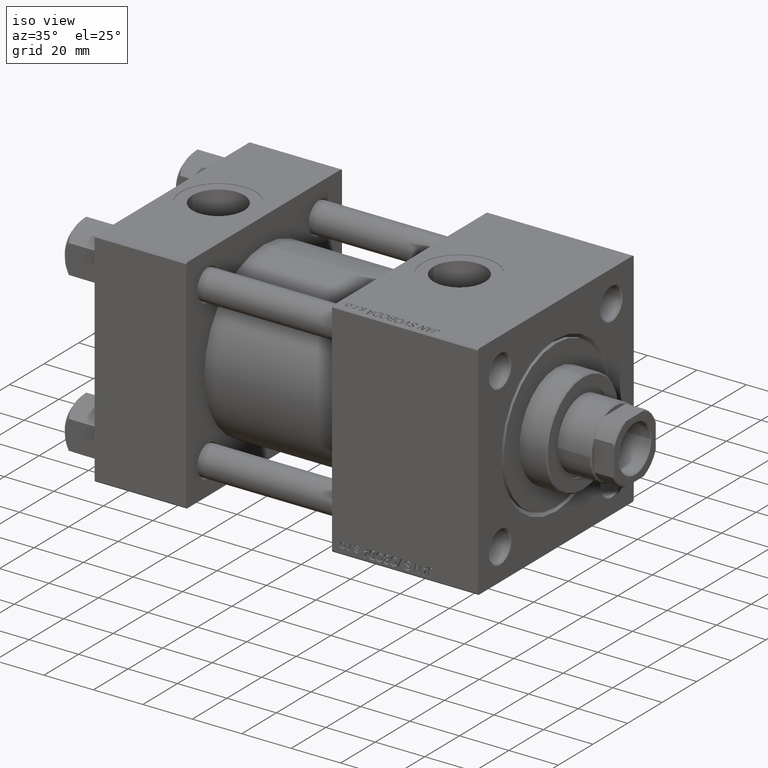
[diagram: clean part render]
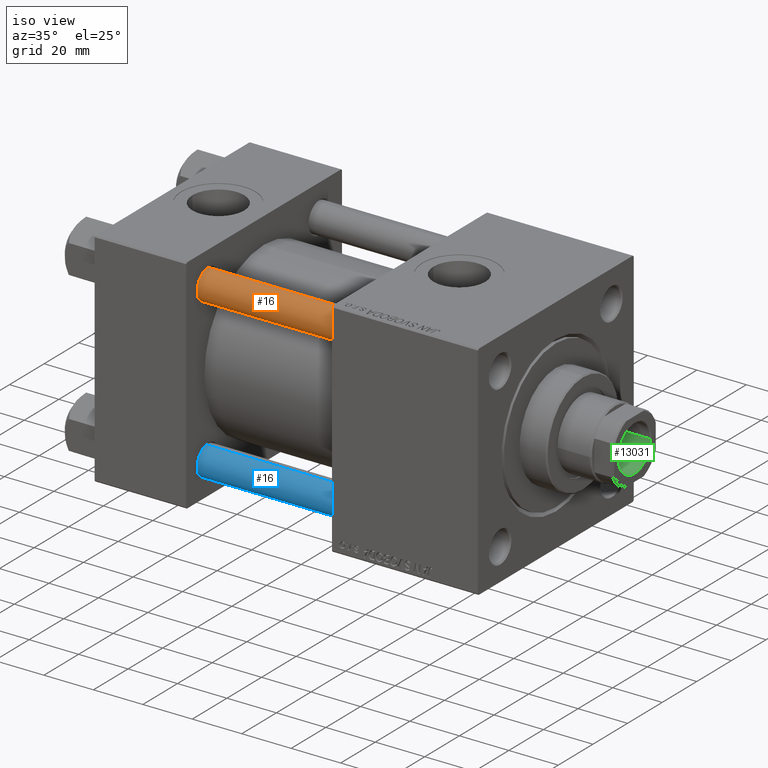
[diagram: same view with three faces highlighted in distinct colors, each labeled with its STEP entity id]
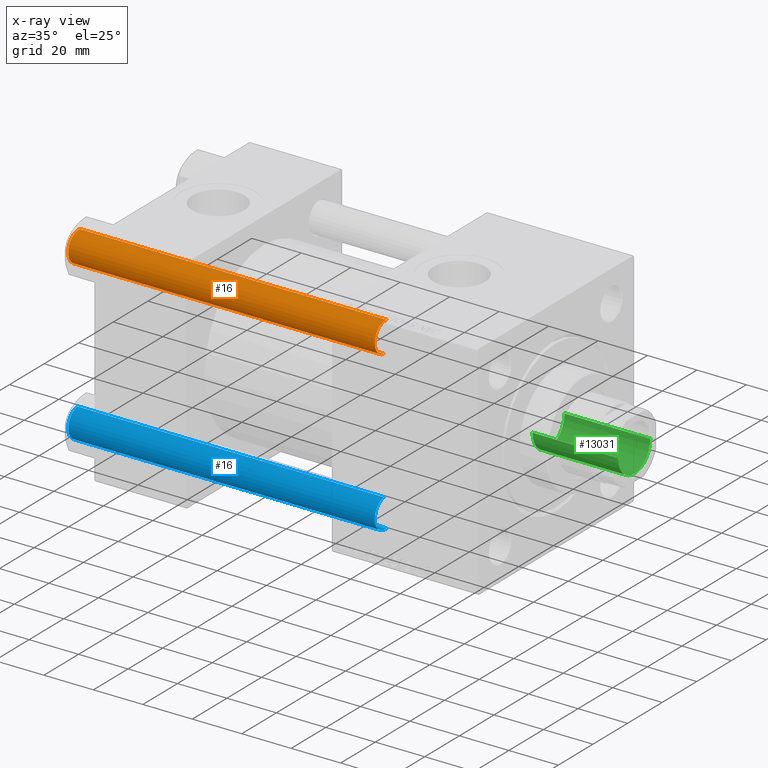
[diagram: x-ray of the same camera — body ghosted, the three highlighted faces saturated]
A machine part, iso view with three faces highlighted in distinct colors.
The next image is the same camera in x-ray (body ghosted, the three faces saturated) — at least one of them is partly hidden behind the body in this view.
Their STEP definitions:

[orange] entity #16 — the highlighted cylindrical surface (edge-blend (fillet) strip) has radius 6 mm, axis along (1, 0, -0).
#16 = ADVANCED_FACE ( 'NONE', ( #22363 ), #37685, .T. ) ;
#798 = CARTESIAN_POINT ( 'NONE',  ( -6.000000000000000888, 0.000000000000000000, 124.5000000000000000 ) ) ;
#1238 = ORIENTED_EDGE ( 'NONE', *, *, #6695, .T. ) ;
#6092 = DIRECTION ( 'NONE',  ( -0.000000000000000000, -0.000000000000000000, 1.000000000000000000 ) ) ;
#6301 = AXIS2_PLACEMENT_3D ( 'NONE', #28193, #24760, #12588 ) ;
#6695 = EDGE_CURVE ( 'NONE', #16794, #18965, #20086, .T. ) ;
#6934 = EDGE_LOOP ( 'NONE', ( #14690, #1238, #38346, #25679 ) ) ;
#6967 = LINE ( 'NONE', #15146, #19276 ) ;
#7432 = CARTESIAN_POINT ( 'NONE',  ( 6.000000000000000888, 7.347880794884120722E-16, 124.5000000000000000 ) ) ;
#8188 = DIRECTION ( 'NONE',  ( -0.000000000000000000, -0.000000000000000000, -1.000000000000000000 ) ) ;
#9409 = CARTESIAN_POINT ( 'NONE',  ( 0.000000000000000000, 0.000000000000000000, 125.0000000000000000 ) ) ;
#9889 = VERTEX_POINT ( 'NONE', #798 ) ;
#10214 = VERTEX_POINT ( 'NONE', #32471 ) ;
#12588 = DIRECTION ( 'NONE',  ( 1.000000000000000000, 0.000000000000000000, 0.000000000000000000 ) ) ;
#12865 = AXIS2_PLACEMENT_3D ( 'NONE', #25904, #6092, #49201 ) ;
#14690 = ORIENTED_EDGE ( 'NONE', *, *, #37759, .T. ) ;
#15146 = CARTESIAN_POINT ( 'NONE',  ( -6.000000000000000888, 0.000000000000000000, 125.0000000000000000 ) ) ;
#16794 = VERTEX_POINT ( 'NONE', #7432 ) ;
#18381 = DIRECTION ( 'NONE',  ( -1.000000000000000000, 0.000000000000000000, 0.000000000000000000 ) ) ;
#18965 = VERTEX_POINT ( 'NONE', #19818 ) ;
#19276 = VECTOR ( 'NONE', #47412, 1000.000000000000000 ) ;
#19818 = CARTESIAN_POINT ( 'NONE',  ( 6.000000000000000888, 7.347880794884120722E-16, 0.4999999999999865663 ) ) ;
#20086 = LINE ( 'NONE', #47586, #30331 ) ;
#22363 = FACE_OUTER_BOUND ( 'NONE', #6934, .T. ) ;
#23378 = AXIS2_PLACEMENT_3D ( 'NONE', #9409, #38472, #18381 ) ;
#24760 = DIRECTION ( 'NONE',  ( 0.000000000000000000, 0.000000000000000000, -1.000000000000000000 ) ) ;
#25679 = ORIENTED_EDGE ( 'NONE', *, *, #51465, .F. ) ;
#25904 = CARTESIAN_POINT ( 'NONE',  ( 0.000000000000000000, 0.000000000000000000, 0.4999999999999865663 ) ) ;
#26374 = CIRCLE ( 'NONE', #12865, 6.000000000000000888 ) ;
#28193 = CARTESIAN_POINT ( 'NONE',  ( 0.000000000000000000, 0.000000000000000000, 124.5000000000000000 ) ) ;
#28971 = EDGE_CURVE ( 'NONE', #18965, #10214, #26374, .T. ) ;
#30331 = VECTOR ( 'NONE', #8188, 1000.000000000000000 ) ;
#32471 = CARTESIAN_POINT ( 'NONE',  ( -6.000000000000000888, 0.000000000000000000, 0.4999999999999865663 ) ) ;
#37685 = CYLINDRICAL_SURFACE ( 'NONE', #23378, 6.000000000000000888 ) ;
#37759 = EDGE_CURVE ( 'NONE', #9889, #16794, #42608, .T. ) ;
#38346 = ORIENTED_EDGE ( 'NONE', *, *, #28971, .T. ) ;
#38472 = DIRECTION ( 'NONE',  ( -0.000000000000000000, -0.000000000000000000, -1.000000000000000000 ) ) ;
#42608 = CIRCLE ( 'NONE', #6301, 6.000000000000000888 ) ;
#47412 = DIRECTION ( 'NONE',  ( -0.000000000000000000, -0.000000000000000000, -1.000000000000000000 ) ) ;
#47586 = CARTESIAN_POINT ( 'NONE',  ( 6.000000000000000888, 7.347880794884120722E-16, 125.0000000000000000 ) ) ;
#49201 = DIRECTION ( 'NONE',  ( 1.000000000000000000, 0.000000000000000000, 0.000000000000000000 ) ) ;
#51465 = EDGE_CURVE ( 'NONE', #9889, #10214, #6967, .T. ) ;

[blue] entity #16 — the highlighted cylindrical surface (edge-blend (fillet) strip) has radius 6 mm, axis along (-1, -0, -0).
#16 = ADVANCED_FACE ( 'NONE', ( #22363 ), #37685, .T. ) ;
#798 = CARTESIAN_POINT ( 'NONE',  ( -6.000000000000000888, 0.000000000000000000, 124.5000000000000000 ) ) ;
#1238 = ORIENTED_EDGE ( 'NONE', *, *, #6695, .T. ) ;
#6092 = DIRECTION ( 'NONE',  ( -0.000000000000000000, -0.000000000000000000, 1.000000000000000000 ) ) ;
#6301 = AXIS2_PLACEMENT_3D ( 'NONE', #28193, #24760, #12588 ) ;
#6695 = EDGE_CURVE ( 'NONE', #16794, #18965, #20086, .T. ) ;
#6934 = EDGE_LOOP ( 'NONE', ( #14690, #1238, #38346, #25679 ) ) ;
#6967 = LINE ( 'NONE', #15146, #19276 ) ;
#7432 = CARTESIAN_POINT ( 'NONE',  ( 6.000000000000000888, 7.347880794884120722E-16, 124.5000000000000000 ) ) ;
#8188 = DIRECTION ( 'NONE',  ( -0.000000000000000000, -0.000000000000000000, -1.000000000000000000 ) ) ;
#9409 = CARTESIAN_POINT ( 'NONE',  ( 0.000000000000000000, 0.000000000000000000, 125.0000000000000000 ) ) ;
#9889 = VERTEX_POINT ( 'NONE', #798 ) ;
#10214 = VERTEX_POINT ( 'NONE', #32471 ) ;
#12588 = DIRECTION ( 'NONE',  ( 1.000000000000000000, 0.000000000000000000, 0.000000000000000000 ) ) ;
#12865 = AXIS2_PLACEMENT_3D ( 'NONE', #25904, #6092, #49201 ) ;
#14690 = ORIENTED_EDGE ( 'NONE', *, *, #37759, .T. ) ;
#15146 = CARTESIAN_POINT ( 'NONE',  ( -6.000000000000000888, 0.000000000000000000, 125.0000000000000000 ) ) ;
#16794 = VERTEX_POINT ( 'NONE', #7432 ) ;
#18381 = DIRECTION ( 'NONE',  ( -1.000000000000000000, 0.000000000000000000, 0.000000000000000000 ) ) ;
#18965 = VERTEX_POINT ( 'NONE', #19818 ) ;
#19276 = VECTOR ( 'NONE', #47412, 1000.000000000000000 ) ;
#19818 = CARTESIAN_POINT ( 'NONE',  ( 6.000000000000000888, 7.347880794884120722E-16, 0.4999999999999865663 ) ) ;
#20086 = LINE ( 'NONE', #47586, #30331 ) ;
#22363 = FACE_OUTER_BOUND ( 'NONE', #6934, .T. ) ;
#23378 = AXIS2_PLACEMENT_3D ( 'NONE', #9409, #38472, #18381 ) ;
#24760 = DIRECTION ( 'NONE',  ( 0.000000000000000000, 0.000000000000000000, -1.000000000000000000 ) ) ;
#25679 = ORIENTED_EDGE ( 'NONE', *, *, #51465, .F. ) ;
#25904 = CARTESIAN_POINT ( 'NONE',  ( 0.000000000000000000, 0.000000000000000000, 0.4999999999999865663 ) ) ;
#26374 = CIRCLE ( 'NONE', #12865, 6.000000000000000888 ) ;
#28193 = CARTESIAN_POINT ( 'NONE',  ( 0.000000000000000000, 0.000000000000000000, 124.5000000000000000 ) ) ;
#28971 = EDGE_CURVE ( 'NONE', #18965, #10214, #26374, .T. ) ;
#30331 = VECTOR ( 'NONE', #8188, 1000.000000000000000 ) ;
#32471 = CARTESIAN_POINT ( 'NONE',  ( -6.000000000000000888, 0.000000000000000000, 0.4999999999999865663 ) ) ;
#37685 = CYLINDRICAL_SURFACE ( 'NONE', #23378, 6.000000000000000888 ) ;
#37759 = EDGE_CURVE ( 'NONE', #9889, #16794, #42608, .T. ) ;
#38346 = ORIENTED_EDGE ( 'NONE', *, *, #28971, .T. ) ;
#38472 = DIRECTION ( 'NONE',  ( -0.000000000000000000, -0.000000000000000000, -1.000000000000000000 ) ) ;
#42608 = CIRCLE ( 'NONE', #6301, 6.000000000000000888 ) ;
#47412 = DIRECTION ( 'NONE',  ( -0.000000000000000000, -0.000000000000000000, -1.000000000000000000 ) ) ;
#47586 = CARTESIAN_POINT ( 'NONE',  ( 6.000000000000000888, 7.347880794884120722E-16, 125.0000000000000000 ) ) ;
#49201 = DIRECTION ( 'NONE',  ( 1.000000000000000000, 0.000000000000000000, 0.000000000000000000 ) ) ;
#51465 = EDGE_CURVE ( 'NONE', #9889, #10214, #6967, .T. ) ;

[green] entity #13031 — the highlighted cylindrical surface (edge-blend (fillet) strip) has radius 9.25 mm, axis along (1, 0, 0).
#1921 = CARTESIAN_POINT ( 'NONE',  ( -9.249999999999994671, 1.132798289211300909E-15, 150.0000000000000000 ) ) ;
#4435 = ORIENTED_EDGE ( 'NONE', *, *, #26378, .F. ) ;
#4825 = CARTESIAN_POINT ( 'NONE',  ( 0.000000000000000000, 0.000000000000000000, 150.0000000000000000 ) ) ;
#5386 = LINE ( 'NONE', #1921, #49120 ) ;
#5853 = VECTOR ( 'NONE', #48054, 1000.000000000000000 ) ;
#7066 = EDGE_CURVE ( 'NONE', #31668, #31720, #38541, .T. ) ;
#8650 = CIRCLE ( 'NONE', #44129, 9.249999999999994671 ) ;
#13018 = DIRECTION ( 'NONE',  ( 1.000000000000000000, 0.000000000000000000, 0.000000000000000000 ) ) ;
#13031 = ADVANCED_FACE ( 'NONE', ( #47934 ), #48455, .F. ) ;
#14923 = EDGE_CURVE ( 'NONE', #31668, #21918, #33869, .T. ) ;
#15438 = DIRECTION ( 'NONE',  ( 0.000000000000000000, 0.000000000000000000, 1.000000000000000000 ) ) ;
#16320 = ORIENTED_EDGE ( 'NONE', *, *, #29373, .T. ) ;
#17267 = DIRECTION ( 'NONE',  ( -0.000000000000000000, -0.000000000000000000, 1.000000000000000000 ) ) ;
#17899 = CARTESIAN_POINT ( 'NONE',  ( -9.249999999999994671, 1.132798289211300909E-15, 149.6999999999999886 ) ) ;
#20957 = DIRECTION ( 'NONE',  ( -0.000000000000000000, -0.000000000000000000, 1.000000000000000000 ) ) ;
#21918 = VERTEX_POINT ( 'NONE', #47188 ) ;
#23161 = ORIENTED_EDGE ( 'NONE', *, *, #14923, .F. ) ;
#26126 = CARTESIAN_POINT ( 'NONE',  ( 9.249999999999994671, 0.000000000000000000, 150.0000000000000000 ) ) ;
#26378 = EDGE_CURVE ( 'NONE', #21918, #30495, #5386, .T. ) ;
#29373 = EDGE_CURVE ( 'NONE', #31720, #30495, #8650, .T. ) ;
#30495 = VERTEX_POINT ( 'NONE', #17899 ) ;
#31561 = DIRECTION ( 'NONE',  ( 1.000000000000000000, 0.000000000000000000, 0.000000000000000000 ) ) ;
#31668 = VERTEX_POINT ( 'NONE', #39236 ) ;
#31720 = VERTEX_POINT ( 'NONE', #46918 ) ;
#33114 = CARTESIAN_POINT ( 'NONE',  ( 0.000000000000000000, 0.000000000000000000, 114.9999999999999858 ) ) ;
#33869 = CIRCLE ( 'NONE', #40649, 9.249999999999992895 ) ;
#35640 = ORIENTED_EDGE ( 'NONE', *, *, #7066, .T. ) ;
#36541 = DIRECTION ( 'NONE',  ( 1.000000000000000000, 0.000000000000000000, 0.000000000000000000 ) ) ;
#38180 = EDGE_LOOP ( 'NONE', ( #4435, #23161, #35640, #16320 ) ) ;
#38541 = LINE ( 'NONE', #26126, #5853 ) ;
#38891 = AXIS2_PLACEMENT_3D ( 'NONE', #4825, #20957, #36541 ) ;
#39236 = CARTESIAN_POINT ( 'NONE',  ( 9.249999999999992895, 0.000000000000000000, 114.9999999999999858 ) ) ;
#40649 = AXIS2_PLACEMENT_3D ( 'NONE', #33114, #49256, #13018 ) ;
#44129 = AXIS2_PLACEMENT_3D ( 'NONE', #51137, #15438, #31561 ) ;
#46918 = CARTESIAN_POINT ( 'NONE',  ( 9.249999999999994671, 0.000000000000000000, 149.6999999999999886 ) ) ;
#47188 = CARTESIAN_POINT ( 'NONE',  ( -9.249999999999992895, 1.132798289211300712E-15, 114.9999999999999858 ) ) ;
#47934 = FACE_OUTER_BOUND ( 'NONE', #38180, .T. ) ;
#48054 = DIRECTION ( 'NONE',  ( -0.000000000000000000, -0.000000000000000000, 1.000000000000000000 ) ) ;
#48455 = CYLINDRICAL_SURFACE ( 'NONE', #38891, 9.249999999999994671 ) ;
#49120 = VECTOR ( 'NONE', #17267, 1000.000000000000000 ) ;
#49256 = DIRECTION ( 'NONE',  ( -0.000000000000000000, -0.000000000000000000, 1.000000000000000000 ) ) ;
#51137 = CARTESIAN_POINT ( 'NONE',  ( 0.000000000000000000, 0.000000000000000000, 149.6999999999999886 ) ) ;